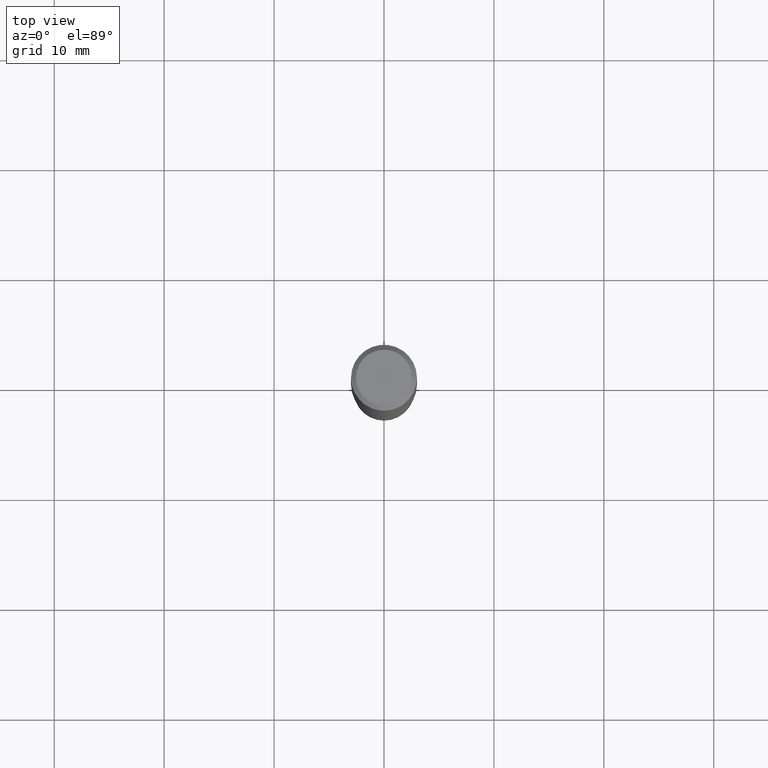
[diagram: clean part render]
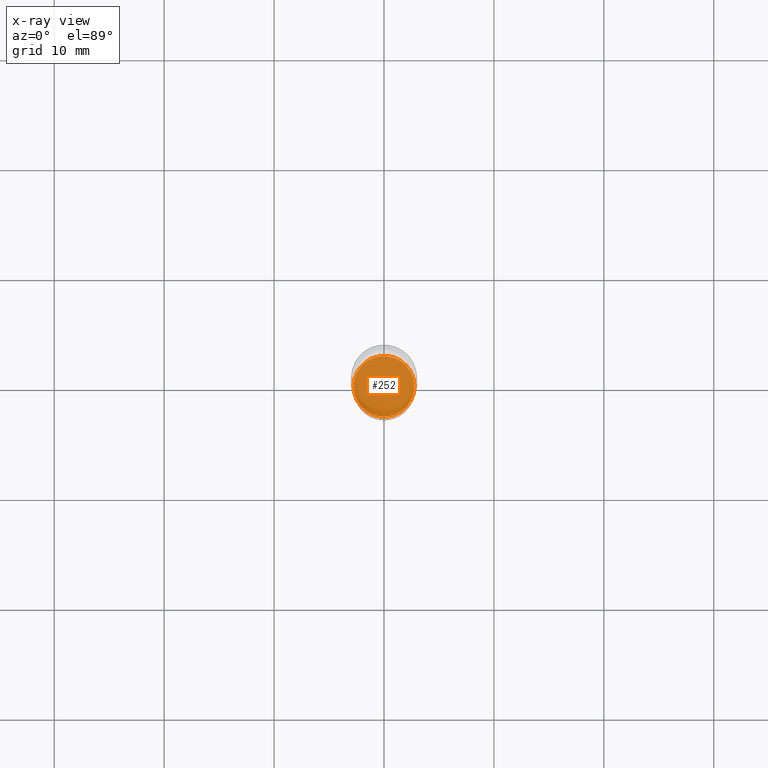
[diagram: x-ray — body ghosted, one internal face saturated and labeled with its STEP entity id]
A machine part, top view, then the same camera in x-ray: the body is ghosted and one INTERNAL B-rep face — a face not visible from any outside direction — is saturated and labeled: STEP entity #252.
In plain terms, the highlighted planar face has unit normal (-0, 0, 1).
Its self-contained STEP definition (entity closure, byte-faithful):
#1 = CIRCLE ( 'NONE', #265, 0.1088999999999999968 ) ;
#40 = AXIS2_PLACEMENT_3D ( 'NONE', #368, #184, #180 ) ;
#49 = EDGE_LOOP ( 'NONE', ( #161, #340 ) ) ;
#69 = PLANE ( 'NONE',  #40 ) ;
#141 = CARTESIAN_POINT ( 'NONE',  ( 0.1088999999999999968, -7.083517340244970560E-15, -1.810999999999999943 ) ) ;
#161 = ORIENTED_EDGE ( 'NONE', *, *, #223, .F. ) ;
#180 = DIRECTION ( 'NONE',  ( 1.000000000000000000, -6.982962677686265922E-15, 4.876176775795935793E-29 ) ) ;
#184 = DIRECTION ( 'NONE',  ( -2.438088387897960049E-29, 3.491481338843145188E-15, 1.000000000000000000 ) ) ;
#201 = DIRECTION ( 'NONE',  ( -2.445468806185136597E-29, 3.491481338843145583E-15, 1.000000000000000000 ) ) ;
#210 = CARTESIAN_POINT ( 'NONE',  ( 4.428744008001282238E-29, -6.323072704644935995E-15, -1.810999999999999943 ) ) ;
#223 = EDGE_CURVE ( 'NONE', #303, #310, #1, .T. ) ;
#243 = DIRECTION ( 'NONE',  ( 1.000000000000000000, -6.982962677686264344E-15, 0.000000000000000000 ) ) ;
#252 = ADVANCED_FACE ( 'NONE', ( #296 ), #69, .F. ) ;
#255 = CARTESIAN_POINT ( 'NONE',  ( -0.1088999999999999968, -5.546642438228075714E-15, -1.810999999999999943 ) ) ;
#258 = AXIS2_PLACEMENT_3D ( 'NONE', #285, #201, #401 ) ;
#265 = AXIS2_PLACEMENT_3D ( 'NONE', #210, #431, #243 ) ;
#285 = CARTESIAN_POINT ( 'NONE',  ( 4.428744008001282238E-29, -6.323072704644935995E-15, -1.810999999999999943 ) ) ;
#296 = FACE_OUTER_BOUND ( 'NONE', #49, .T. ) ;
#303 = VERTEX_POINT ( 'NONE', #141 ) ;
#310 = VERTEX_POINT ( 'NONE', #255 ) ;
#340 = ORIENTED_EDGE ( 'NONE', *, *, #470, .F. ) ;
#368 = CARTESIAN_POINT ( 'NONE',  ( 4.428744008001282238E-29, -6.323072704644935995E-15, -1.810999999999999943 ) ) ;
#401 = DIRECTION ( 'NONE',  ( 1.000000000000000000, -6.982962677686264344E-15, 0.000000000000000000 ) ) ;
#431 = DIRECTION ( 'NONE',  ( -2.445468806185136597E-29, 3.491481338843145583E-15, 1.000000000000000000 ) ) ;
#470 = EDGE_CURVE ( 'NONE', #310, #303, #487, .T. ) ;
#487 = CIRCLE ( 'NONE', #258, 0.1088999999999999968 ) ;